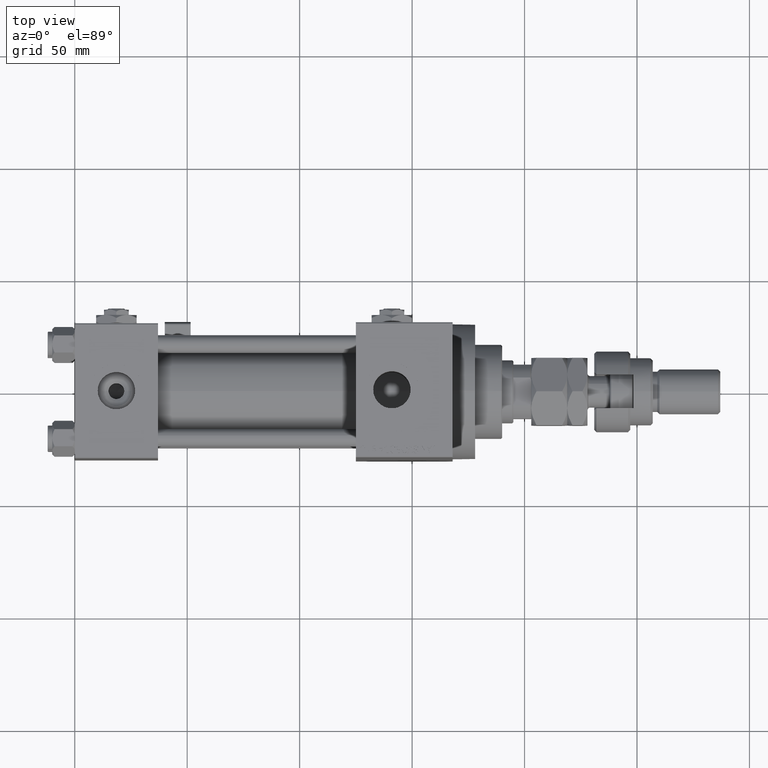
[diagram: clean part render]
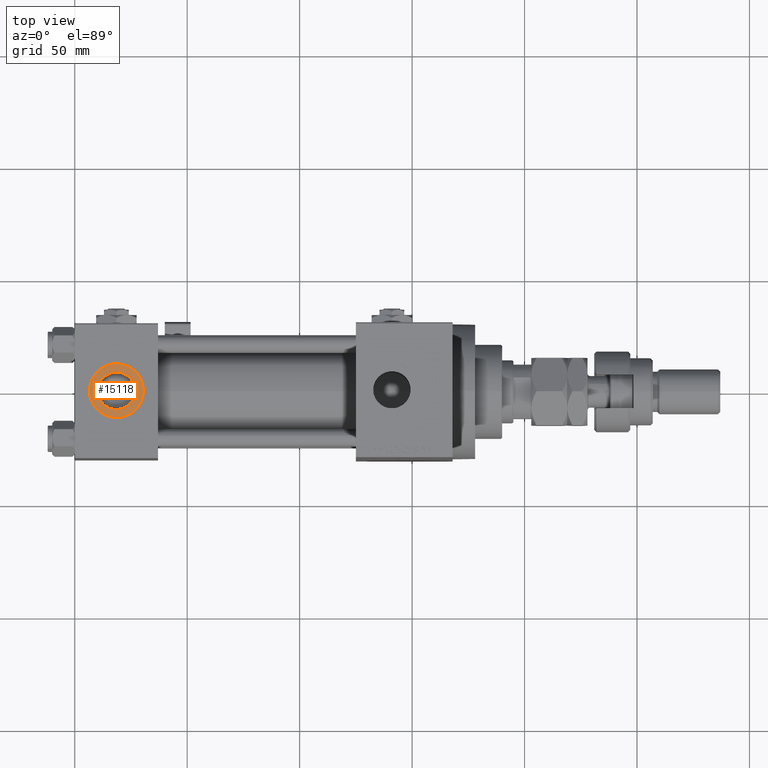
[diagram: same view with one face highlighted and labeled with its STEP entity id]
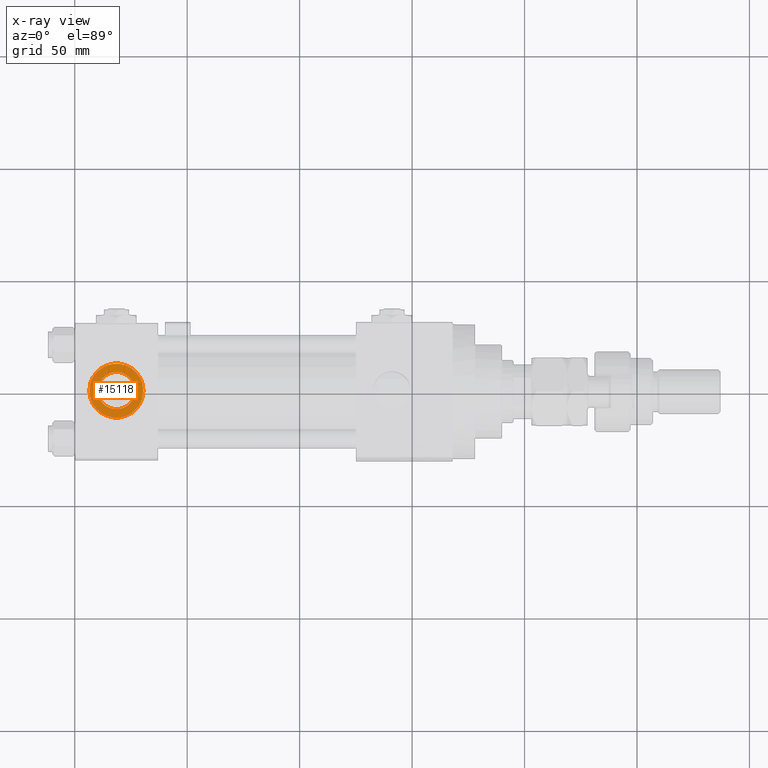
[diagram: x-ray of the same camera — body ghosted, the highlighted face saturated]
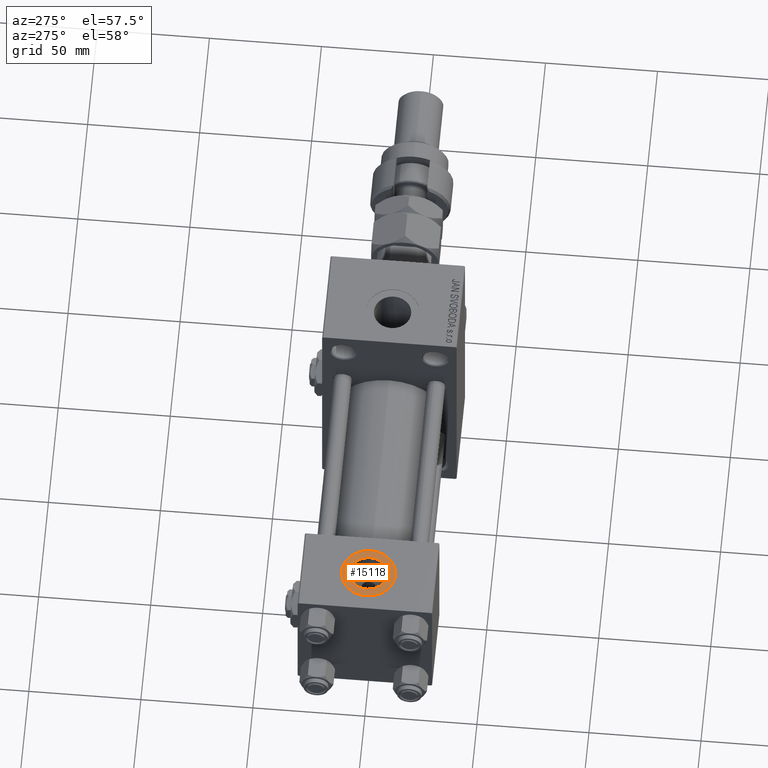
[diagram: same view with one face highlighted and labeled with its STEP entity id]
A machine part, top view. The second image highlights one B-rep face of the part: STEP entity #15118.
The next image is the same camera in x-ray: the body ghosted, the highlighted face saturated — about 0% of this face is hidden behind the body in this view.
A second angle (auxiliary view) of the same face is appended — the face is thin or edge-on in the first view.
In plain terms, the highlighted planar face has unit normal (0, 0, 1).
Its self-contained STEP definition (entity closure, byte-faithful):
#1367 = DIRECTION ( 'NONE',  ( 1.000000000000000000, 0.000000000000000000, 0.000000000000000000 ) ) ;
#1636 = CARTESIAN_POINT ( 'NONE',  ( 18.50000000000000000, -3.469446951953614978E-15, 29.79999999999999716 ) ) ;
#1810 = AXIS2_PLACEMENT_3D ( 'NONE', #24596, #33405, #37027 ) ;
#2325 = CARTESIAN_POINT ( 'NONE',  ( 6.499999999999997335, -1.999870792976790833E-15, 29.79999999999999716 ) ) ;
#4051 = CIRCLE ( 'NONE', #43763, 8.330000000000000071 ) ;
#6314 = VERTEX_POINT ( 'NONE', #40619 ) ;
#7513 = CIRCLE ( 'NONE', #53388, 12.00000000000000000 ) ;
#8673 = EDGE_LOOP ( 'NONE', ( #18034, #32820 ) ) ;
#10352 = ORIENTED_EDGE ( 'NONE', *, *, #37928, .F. ) ;
#15056 = CIRCLE ( 'NONE', #1810, 12.00000000000000000 ) ;
#15118 = ADVANCED_FACE ( 'NONE', ( #40999, #36024 ), #20299, .T. ) ;
#17602 = EDGE_CURVE ( 'NONE', #35933, #20920, #7513, .T. ) ;
#18034 = ORIENTED_EDGE ( 'NONE', *, *, #32056, .T. ) ;
#19535 = CARTESIAN_POINT ( 'NONE',  ( 26.82999999999999829, -3.469446951953614978E-15, 29.79999999999999716 ) ) ;
#19603 = EDGE_CURVE ( 'NONE', #6314, #21435, #4051, .T. ) ;
#20299 = PLANE ( 'NONE',  #43566 ) ;
#20920 = VERTEX_POINT ( 'NONE', #33689 ) ;
#21435 = VERTEX_POINT ( 'NONE', #19535 ) ;
#22374 = DIRECTION ( 'NONE',  ( 0.000000000000000000, 0.000000000000000000, 1.000000000000000000 ) ) ;
#22410 = DIRECTION ( 'NONE',  ( 0.000000000000000000, 0.000000000000000000, 1.000000000000000000 ) ) ;
#23584 = EDGE_LOOP ( 'NONE', ( #10352, #31040 ) ) ;
#24596 = CARTESIAN_POINT ( 'NONE',  ( 18.50000000000000000, -3.469446951953614978E-15, 29.79999999999999716 ) ) ;
#26464 = CARTESIAN_POINT ( 'NONE',  ( 18.50000000000000000, -3.469446951953614978E-15, 29.79999999999999716 ) ) ;
#31040 = ORIENTED_EDGE ( 'NONE', *, *, #19603, .F. ) ;
#32056 = EDGE_CURVE ( 'NONE', #20920, #35933, #15056, .T. ) ;
#32420 = AXIS2_PLACEMENT_3D ( 'NONE', #1636, #22374, #1367 ) ;
#32820 = ORIENTED_EDGE ( 'NONE', *, *, #17602, .T. ) ;
#33405 = DIRECTION ( 'NONE',  ( 0.000000000000000000, 0.000000000000000000, 1.000000000000000000 ) ) ;
#33689 = CARTESIAN_POINT ( 'NONE',  ( 30.50000000000000000, -3.469446951953614978E-15, 29.79999999999999716 ) ) ;
#33927 = DIRECTION ( 'NONE',  ( 1.000000000000000000, 0.000000000000000000, 0.000000000000000000 ) ) ;
#35713 = CARTESIAN_POINT ( 'NONE',  ( 18.50000000000000000, -3.469446951953614978E-15, 29.79999999999999716 ) ) ;
#35933 = VERTEX_POINT ( 'NONE', #2325 ) ;
#36024 = FACE_OUTER_BOUND ( 'NONE', #8673, .T. ) ;
#37027 = DIRECTION ( 'NONE',  ( 1.000000000000000000, 0.000000000000000000, 0.000000000000000000 ) ) ;
#37928 = EDGE_CURVE ( 'NONE', #21435, #6314, #45682, .T. ) ;
#40416 = DIRECTION ( 'NONE',  ( 1.000000000000000000, 0.000000000000000000, 0.000000000000000000 ) ) ;
#40619 = CARTESIAN_POINT ( 'NONE',  ( 10.16999999999999638, -2.449316168263869821E-15, 29.79999999999999716 ) ) ;
#40999 = FACE_BOUND ( 'NONE', #23584, .T. ) ;
#43377 = CARTESIAN_POINT ( 'NONE',  ( 18.50000000000000000, -3.469446951953614978E-15, 29.79999999999999716 ) ) ;
#43566 = AXIS2_PLACEMENT_3D ( 'NONE', #43377, #22410, #46213 ) ;
#43763 = AXIS2_PLACEMENT_3D ( 'NONE', #35713, #44011, #40416 ) ;
#44011 = DIRECTION ( 'NONE',  ( 0.000000000000000000, 0.000000000000000000, 1.000000000000000000 ) ) ;
#45682 = CIRCLE ( 'NONE', #32420, 8.330000000000000071 ) ;
#46213 = DIRECTION ( 'NONE',  ( 1.000000000000000000, 0.000000000000000000, -0.000000000000000000 ) ) ;
#51045 = DIRECTION ( 'NONE',  ( 0.000000000000000000, 0.000000000000000000, 1.000000000000000000 ) ) ;
#53388 = AXIS2_PLACEMENT_3D ( 'NONE', #26464, #51045, #33927 ) ;